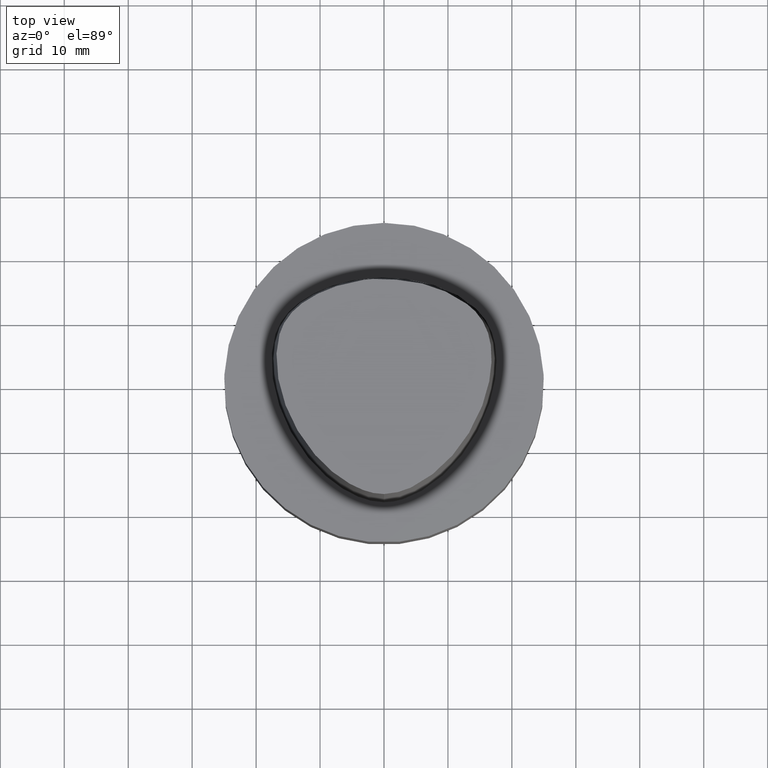
[diagram: clean part render]
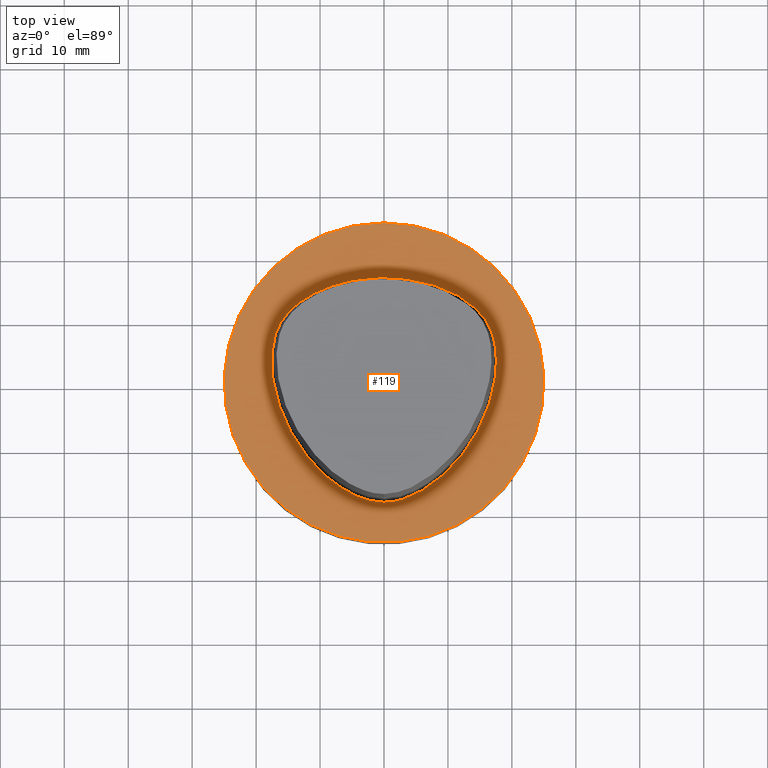
[diagram: same view with one face highlighted and labeled with its STEP entity id]
A machine part, top view. The second image highlights one B-rep face of the part: STEP entity #119.
In plain terms, the highlighted planar face has unit normal (-0, -0, 1).
Its self-contained STEP definition (entity closure, byte-faithful):
#113=EDGE_CURVE('Unnamed[1]',#236,#236,#237,.T.);
#119=ADVANCED_FACE('Unnamed[1]',(#245,#246),#247,.T.);
#121=EDGE_CURVE('Unnamed[1]',#218,#218,#249,.T.);
#218=VERTEX_POINT('',#799);
#236=VERTEX_POINT('',#824);
#237=CIRCLE('',#825,25.0);
#245=FACE_OUTER_BOUND('',#835,.T.);
#246=FACE_BOUND('',#836,.T.);
#247=PLANE('',#837);
#249=B_SPLINE_CURVE_WITH_KNOTS('',3,(#840,#841,#842,#843,#844,#845,#846,#847,#848,#849,#850,#851,#852,#853,#854,#855,#856,#857,#858,#859,#860,#861,#862,#863,#864,#865,#866,#867,#868,#869,#870,#871,#872,#873,#874,#875,#876,#877,#878,#879,#880,#881,#882,#883,#884,#885,#886,#887,#888,#889,#890,#891),.UNSPECIFIED.,.T.,.F.,(4,3,1,1,1,1,1,1,1,1,1,1,1,1,1,1,1,1,1,1,1,1,1,1,1,1,1,1,1,1,1,1,1,1,1,1,1,1,1,1,1,1,1,1,1,1,1,4),(1.3649724787312E-014,0.000251979175569,0.023064084362549,0.046003582878944,0.068504181899514,0.090417859573715,0.111730467452593,0.132560049659696,0.153071509572437,0.173451528056674,0.193897288981708,0.214601246514386,0.235737108542665,0.257436051133125,0.279755901268811,0.302581107070726,0.325645832659338,0.348711969385417,0.371735041893596,0.394416875239587,0.416534755913113,0.438033887711147,0.459018888245884,0.479608932981898,0.499704912611684,0.520351139004295,0.540936759940389,0.561925693222472,0.583454395144715,0.605583556980323,0.628244471201998,0.651247558302416,0.674300629342869,0.69734836049745,0.720172940639181,0.74251195022476,0.76421931532038,0.785350596718499,0.80605412660848,0.826500412756753,0.846880503448092,0.867392290784713,0.888219433845538,0.909522100637064,0.931425509445934,0.95396034955246,0.976915152358003,1.0),.UNSPECIFIED.);
#799=CARTESIAN_POINT('',(-0.00144332333831829,-18.693734925237,0.0));
#824=CARTESIAN_POINT('',(-3.08148791101958E-031,25.0,3.06161699786838E-015));
#825=AXIS2_PLACEMENT_3D('',#1010,#1011,#1012);
#835=EDGE_LOOP('',(#1020));
#836=EDGE_LOOP('',(#1021));
#837=AXIS2_PLACEMENT_3D('',#1022,#1023,#1024);
#840=CARTESIAN_POINT('',(-0.00144332333806129,-18.693734925237,0.0));
#841=CARTESIAN_POINT('',(-0.0107097733406263,-18.6937739851458,0.0));
#842=CARTESIAN_POINT('',(-0.0199759398303483,-18.6937986220233,0.0));
#843=CARTESIAN_POINT('',(-0.0292417827124523,-18.693808801102,0.0));
#844=CARTESIAN_POINT('',(-0.868094366443298,-18.6947303304788,0.0));
#845=CARTESIAN_POINT('',(-2.55246023638835,-18.418482644312,0.0));
#846=CARTESIAN_POINT('',(-4.89875856921613,-17.4984399190556,0.0));
#847=CARTESIAN_POINT('',(-7.04204190801984,-16.2391999856378,0.0));
#848=CARTESIAN_POINT('',(-8.95265931097535,-14.7506172023573,0.0));
#849=CARTESIAN_POINT('',(-10.6563991119162,-13.1188399897072,0.0));
#850=CARTESIAN_POINT('',(-12.1636541733904,-11.3720496471901,0.0));
#851=CARTESIAN_POINT('',(-13.489422738417,-9.52639979375997,0.0));
#852=CARTESIAN_POINT('',(-14.6454739013018,-7.58658158346658,0.0));
#853=CARTESIAN_POINT('',(-15.637100694798,-5.54978847376548,0.0));
#854=CARTESIAN_POINT('',(-16.456698048968,-3.40786875777598,0.0));
#855=CARTESIAN_POINT('',(-17.0889833491107,-1.15469590541547,0.0));
#856=CARTESIAN_POINT('',(-17.4969148860612,1.21051118335059,0.0));
#857=CARTESIAN_POINT('',(-17.6391239303606,3.67179061556356,0.0));
#858=CARTESIAN_POINT('',(-17.4046279667015,6.17893424522144,0.0));
#859=CARTESIAN_POINT('',(-16.6922322845779,8.6403498801451,0.0));
#860=CARTESIAN_POINT('',(-15.283766615606,10.8027377519623,0.0));
#861=CARTESIAN_POINT('',(-13.3936237973908,12.5108781441054,0.0));
#862=CARTESIAN_POINT('',(-11.2763054480325,13.8458468073431,0.0));
#863=CARTESIAN_POINT('',(-9.04935688756928,14.8528250944037,0.0));
#864=CARTESIAN_POINT('',(-6.79085102525022,15.5999019153035,0.0));
#865=CARTESIAN_POINT('',(-4.52021630060969,16.1023476384591,0.0));
#866=CARTESIAN_POINT('',(-2.26246156596057,16.3232009150202,0.0));
#867=CARTESIAN_POINT('',(-0.010284384652677,16.5171036775816,0.0));
#868=CARTESIAN_POINT('',(2.24289478401833,16.3307942195411,0.0));
#869=CARTESIAN_POINT('',(4.51954143974489,16.097061124195,0.0));
#870=CARTESIAN_POINT('',(6.79130950470244,15.5986474887949,0.0));
#871=CARTESIAN_POINT('',(9.05774557032001,14.8699350639083,0.0));
#872=CARTESIAN_POINT('',(11.2843737733515,13.8574917309306,0.0));
#873=CARTESIAN_POINT('',(13.3896535618128,12.5059119390046,0.0));
#874=CARTESIAN_POINT('',(15.2730986693894,10.7944256208116,0.0));
#875=CARTESIAN_POINT('',(16.6803649537127,8.63522204939824,0.0));
#876=CARTESIAN_POINT('',(17.4102028519321,6.18071295397593,0.0));
#877=CARTESIAN_POINT('',(17.6513001628315,3.67287228206047,0.0));
#878=CARTESIAN_POINT('',(17.4994414638912,1.2108522501886,0.0));
#879=CARTESIAN_POINT('',(17.0845799025849,-1.15357770998686,0.0));
#880=CARTESIAN_POINT('',(16.4572234328942,-3.40813678035606,0.0));
#881=CARTESIAN_POINT('',(15.6377356021644,-5.55010749138326,0.0));
#882=CARTESIAN_POINT('',(14.645265193796,-7.5864554563164,0.0));
#883=CARTESIAN_POINT('',(13.4894994425932,-9.52644029792941,0.0));
#884=CARTESIAN_POINT('',(12.1642195560525,-11.3724179061527,0.0));
#885=CARTESIAN_POINT('',(10.6558538869767,-13.1176668009149,0.0));
#886=CARTESIAN_POINT('',(8.94990683923968,-14.7464106803183,0.0));
#887=CARTESIAN_POINT('',(7.03460013655795,-16.2285141276668,0.0));
#888=CARTESIAN_POINT('',(4.90565444488605,-17.5125757806836,0.0));
#889=CARTESIAN_POINT('',(2.54533272527776,-18.4415925238094,0.0));
#890=CARTESIAN_POINT('',(0.847494236713077,-18.6901564864918,0.0));
#891=CARTESIAN_POINT('',(-0.00144332333806129,-18.693734925237,0.0));
#1010=CARTESIAN_POINT('',(0.0,0.0,0.0));
#1011=DIRECTION('',(6.12323399573677E-017,1.22464679914735E-016,-1.0));
#1012=DIRECTION('',(-1.23259516440783E-032,1.0,1.22464679914735E-016));
#1020=ORIENTED_EDGE('',*,*,#113,.F.);
#1021=ORIENTED_EDGE('',*,*,#121,.T.);
#1022=CARTESIAN_POINT('',(-1.54074395550979E-031,12.5,1.53080849893419E-015));
#1023=DIRECTION('',(-6.12323399573677E-017,-1.22464679914735E-016,1.0));
#1024=DIRECTION('',(1.23259516440783E-032,-1.0,-1.22464679914735E-016));